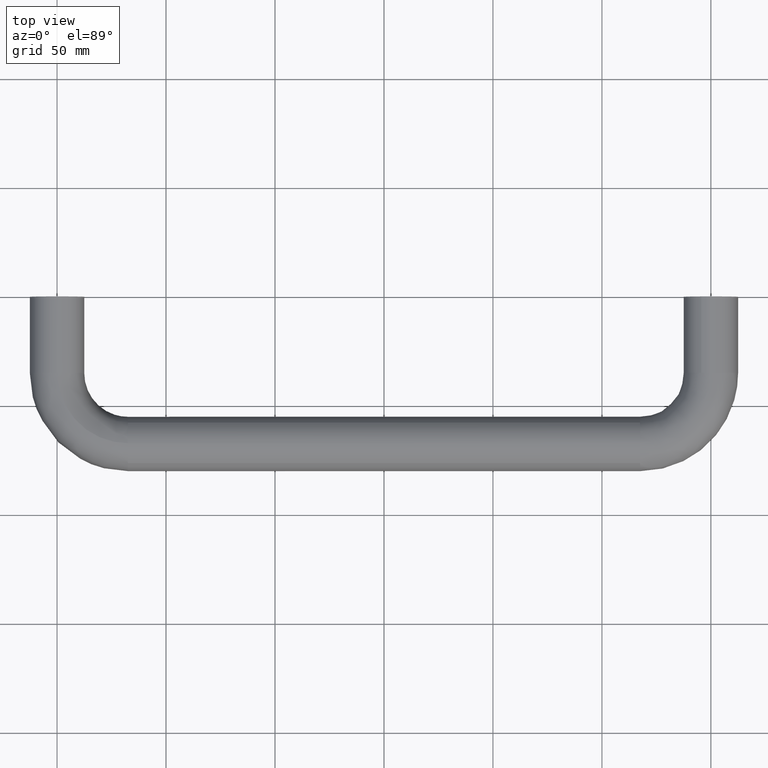
[diagram: clean part render]
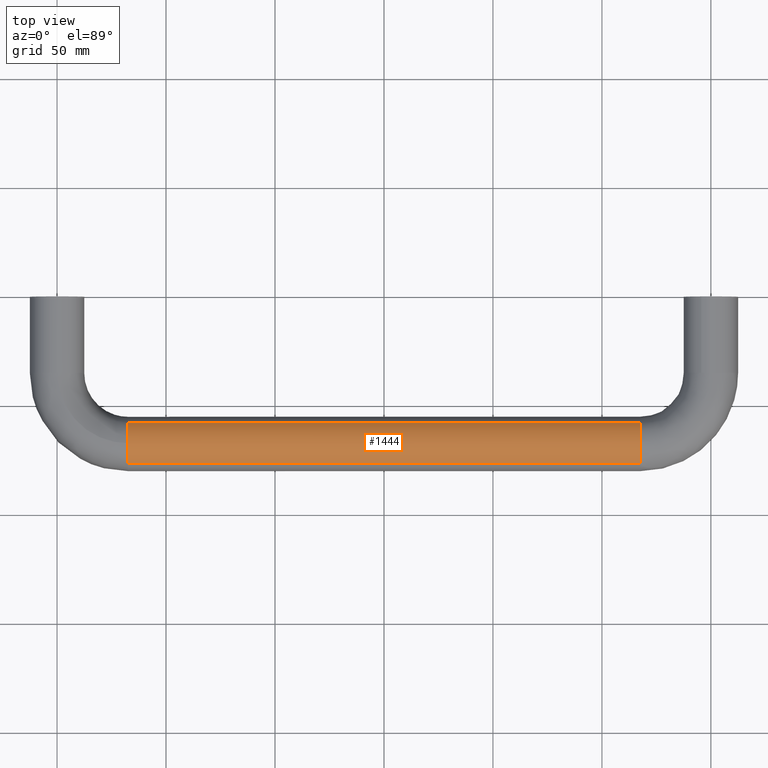
[diagram: same view with one face highlighted and labeled with its STEP entity id]
A machine part, top view. The second image highlights one B-rep face of the part: STEP entity #1444.
In plain terms, the highlighted face is a freeform B-spline surface patch.
Its self-contained STEP definition (entity closure, byte-faithful):
#1331=CARTESIAN_POINT('',(26.624998920849887,-57.705007819061073,7.766475330384627));
#1332=CARTESIAN_POINT('',(26.624998920849894,-57.736446044946867,7.805479481215761));
#1333=CARTESIAN_POINT('',(26.624998920849887,-58.222188900980768,8.408121236215372));
#1334=CARTESIAN_POINT('',(26.624998920849890,-58.738634196251873,8.915630614427272));
#1335=CARTESIAN_POINT('',(26.624998920849890,-67.654264810679138,17.676996418175403));
#1336=CARTESIAN_POINT('',(26.624998920849876,-76.449032388557896,8.727375911454391));
#1337=CARTESIAN_POINT('',(26.624998920849890,-76.482328836518164,8.693493199850328));
#1338=CARTESIAN_POINT('',(273.521919242795210,-57.705007819061073,7.766475330384627));
#1339=CARTESIAN_POINT('',(273.521919242795150,-57.736446044946867,7.805479481215761));
#1340=CARTESIAN_POINT('',(273.521919242795040,-58.222188900980768,8.408121236215372));
#1341=CARTESIAN_POINT('',(273.521919242795090,-58.738634196251873,8.915630614427272));
#1342=CARTESIAN_POINT('',(273.521919242795210,-67.654264810679138,17.676996418175403));
#1343=CARTESIAN_POINT('',(273.521919242794980,-76.449032388557896,8.727375911454391));
#1344=CARTESIAN_POINT('',(273.521919242795040,-76.482328836518164,8.693493199850328));
#1352=(BOUNDED_SURFACE()B_SPLINE_SURFACE(2,1,((#1331,#1338),(#1332,#1339),(#1333,#1340),(#1334,#1341),(#1335,#1342),(#1336,#1343),(#1337,#1344)),.UNSPECIFIED.,.F.,.F.,.U.)B_SPLINE_SURFACE_WITH_KNOTS((3,1,2,1,3),(2,2),(0.0,0.111855641948489,1.768709891440872,22.479388010095629,22.591227040811070),(0.0,246.896920321945290),.UNSPECIFIED.)GEOMETRIC_REPRESENTATION_ITEM()RATIONAL_B_SPLINE_SURFACE(((0.954228563724018,0.954228563724018),(0.955557340957339,0.955557340957339),(0.976568542494924,0.976568542494924),(1.0,1.0),(0.707106781186548,0.707106781186548),(1.001581642740405,1.001581642740405),(1.003163285480809,1.003163285480809)))REPRESENTATION_ITEM('')SURFACE());
#1353=CARTESIAN_POINT('',(32.499999999843453,-57.767796957675593,7.844375305998581));
#1354=VERTEX_POINT('',#1353);
#1355=CARTESIAN_POINT('',(32.499999999301892,-67.342924500712314,12.499013052538331));
#1356=VERTEX_POINT('',#1355);
#1357=CARTESIAN_POINT('',(32.499999999843439,-57.767796957675593,7.844375305998581));
#1358=CARTESIAN_POINT('',(32.499999999634618,-61.459949549321443,12.425081516641043));
#1359=CARTESIAN_POINT('',(32.499999999301892,-67.342924500712314,12.499013052538324));
#1367=(BOUNDED_CURVE()B_SPLINE_CURVE(2,(#1357,#1358,#1359),.UNSPECIFIED.,.F.,.U.)B_SPLINE_CURVE_WITH_KNOTS((3,3),(0.858840176719265,0.997784295900742),.UNSPECIFIED.)CURVE()GEOMETRIC_REPRESENTATION_ITEM()RATIONAL_B_SPLINE_CURVE((0.856000945873049,0.834956568927307,0.994854295595711))REPRESENTATION_ITEM(''));
#1368=EDGE_CURVE('',#1354,#1356,#1367,.T.);
#1369=ORIENTED_EDGE('',*,*,#1368,.T.);
#1370=CARTESIAN_POINT('',(32.500000000000000,-67.500000000000000,12.500000000000000));
#1371=VERTEX_POINT('',#1370);
#1372=CARTESIAN_POINT('',(32.499999999301899,-67.342924500712314,12.499013052538333));
#1373=CARTESIAN_POINT('',(32.500000000000000,-67.421459149355528,12.499999999999998));
#1374=CARTESIAN_POINT('',(32.500000000000000,-67.500000000000000,12.500000000000000));
#1382=(BOUNDED_CURVE()B_SPLINE_CURVE(2,(#1372,#1373,#1374),.UNSPECIFIED.,.F.,.U.)B_SPLINE_CURVE_WITH_KNOTS((3,3),(0.997784295900742,1.0),.UNSPECIFIED.)CURVE()GEOMETRIC_REPRESENTATION_ITEM()RATIONAL_B_SPLINE_CURVE((0.994854295595709,0.997404141177720,1.0))REPRESENTATION_ITEM(''));
#1383=EDGE_CURVE('',#1356,#1371,#1382,.T.);
#1384=ORIENTED_EDGE('',*,*,#1383,.T.);
#1385=CARTESIAN_POINT('',(32.499999999999993,-76.415631368133688,8.761365036770771));
#1386=VERTEX_POINT('',#1385);
#1387=CARTESIAN_POINT('',(32.500000000000000,-67.500000000000000,12.500000000000000));
#1388=CARTESIAN_POINT('',(32.500000000000000,-72.741685654186853,12.499999999999995));
#1389=CARTESIAN_POINT('',(32.499999999999993,-76.415631368133731,8.761365036770808));
#1397=(BOUNDED_CURVE()B_SPLINE_CURVE(2,(#1387,#1388,#1389),.UNSPECIFIED.,.F.,.U.)B_SPLINE_CURVE_WITH_KNOTS((3,3),(0.0,0.126316770571681),.UNSPECIFIED.)CURVE()GEOMETRIC_REPRESENTATION_ITEM()RATIONAL_B_SPLINE_CURVE((1.0,0.852010697908560,0.853569641571901))REPRESENTATION_ITEM(''));
#1398=EDGE_CURVE('',#1371,#1386,#1397,.T.);
#1399=ORIENTED_EDGE('',*,*,#1398,.T.);
#1400=CARTESIAN_POINT('',(267.499999999999890,-76.415631377549772,8.761365027188898));
#1401=VERTEX_POINT('',#1400);
#1402=CARTESIAN_POINT('',(32.499999999999993,-76.415631368133688,8.761365036770771));
#1403=CARTESIAN_POINT('',(267.499999999999890,-76.415631377549772,8.761365027188898));
#1404=QUASI_UNIFORM_CURVE('',1,(#1402,#1403),.UNSPECIFIED.,.F.,.U.);
#1405=EDGE_CURVE('',#1386,#1401,#1404,.T.);
#1406=ORIENTED_EDGE('',*,*,#1405,.T.);
#1407=CARTESIAN_POINT('',(267.500000000000000,-67.500000000000000,12.500000000000000));
#1408=VERTEX_POINT('',#1407);
#1409=CARTESIAN_POINT('',(267.500000000000000,-67.500000000000000,12.500000000000000));
#1410=CARTESIAN_POINT('',(267.500000000000060,-72.741685662085047,12.499999999999996));
#1411=CARTESIAN_POINT('',(267.500000000000000,-76.415631377549801,8.761365027188932));
#1419=(BOUNDED_CURVE()B_SPLINE_CURVE(2,(#1409,#1410,#1411),.UNSPECIFIED.,.F.,.U.)B_SPLINE_CURVE_WITH_KNOTS((3,3),(0.0,0.126316770733848),.UNSPECIFIED.)CURVE()GEOMETRIC_REPRESENTATION_ITEM()RATIONAL_B_SPLINE_CURVE((1.0,0.852010697718570,0.853569641575904))REPRESENTATION_ITEM(''));
#1420=EDGE_CURVE('',#1408,#1401,#1419,.T.);
#1421=ORIENTED_EDGE('',*,*,#1420,.F.);
#1422=CARTESIAN_POINT('',(267.500008139093780,-57.767786944934983,7.844362883664394));
#1423=VERTEX_POINT('',#1422);
#1424=CARTESIAN_POINT('',(267.500008139093720,-57.767786944934983,7.844362883664395));
#1425=CARTESIAN_POINT('',(267.500000064818610,-61.520325734255316,12.500000000000044));
#1426=CARTESIAN_POINT('',(267.500000000000000,-67.500000000000000,12.500000000000000));
#1434=(BOUNDED_CURVE()B_SPLINE_CURVE(2,(#1424,#1425,#1426),.UNSPECIFIED.,.F.,.U.)B_SPLINE_CURVE_WITH_KNOTS((3,3),(0.858839983571529,1.0),.UNSPECIFIED.)CURVE()GEOMETRIC_REPRESENTATION_ITEM()RATIONAL_B_SPLINE_CURVE((0.856001004381435,0.834620753682021,1.0))REPRESENTATION_ITEM(''));
#1435=EDGE_CURVE('',#1423,#1408,#1434,.T.);
#1436=ORIENTED_EDGE('',*,*,#1435,.F.);
#1437=CARTESIAN_POINT('',(32.499999999843453,-57.767796957675593,7.844375305998581));
#1438=CARTESIAN_POINT('',(267.500008139093780,-57.767786944934983,7.844362883664394));
#1439=QUASI_UNIFORM_CURVE('',1,(#1437,#1438),.UNSPECIFIED.,.F.,.U.);
#1440=EDGE_CURVE('',#1354,#1423,#1439,.T.);
#1441=ORIENTED_EDGE('',*,*,#1440,.F.);
#1442=EDGE_LOOP('',(#1369,#1384,#1399,#1406,#1421,#1436,#1441));
#1443=FACE_OUTER_BOUND('',#1442,.T.);
#1444=ADVANCED_FACE('',(#1443),#1352,.T.);